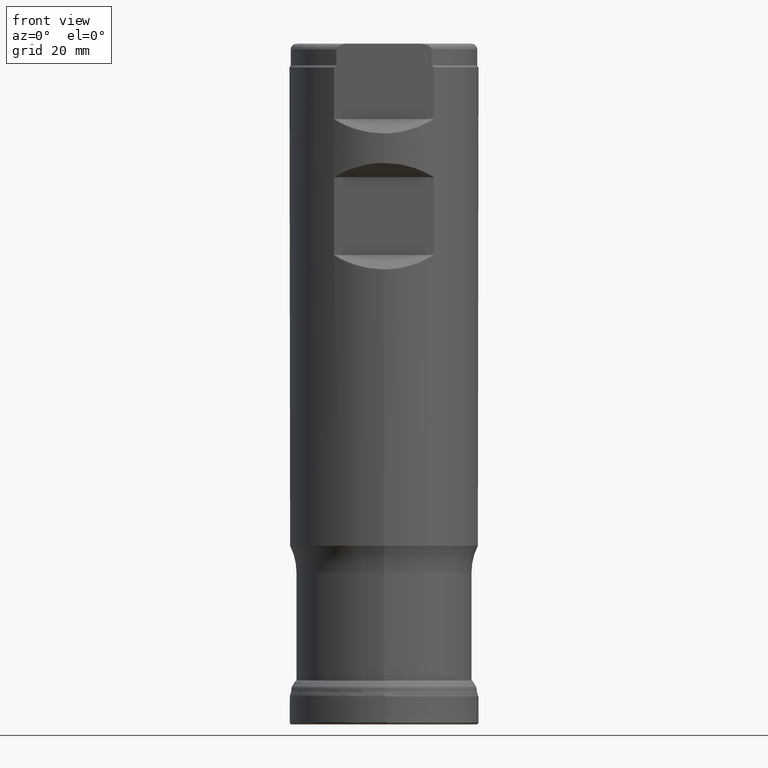
[diagram: clean part render]
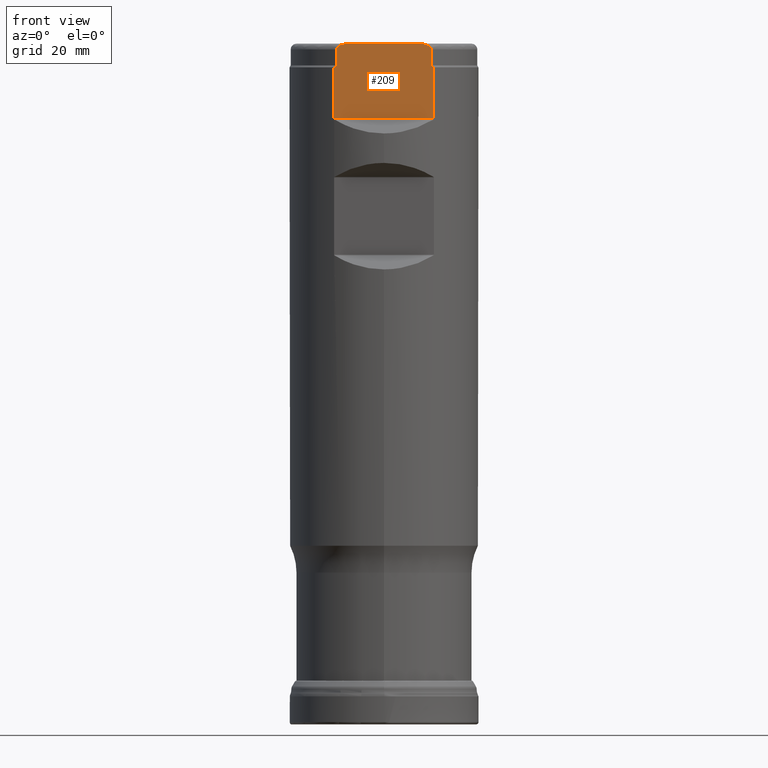
[diagram: same view with one face highlighted and labeled with its STEP entity id]
A machine part, front view. The second image highlights one B-rep face of the part: STEP entity #209.
In plain terms, the highlighted planar face has unit normal (0, -1, 0).
Its self-contained STEP definition (entity closure, byte-faithful):
#164=PLANE('',#857);
#179=FACE_OUTER_BOUND('',#409,.T.);
#209=ADVANCED_FACE('',(#179),#164,.T.);
#409=EDGE_LOOP('',(#562,#563,#564,#565,#566,#567,#568,#569,#570,#571));
#461=LINE('',#1357,#480);
#462=LINE('',#1361,#481);
#463=LINE('',#1394,#482);
#464=LINE('',#1395,#483);
#465=LINE('',#1402,#484);
#466=LINE('',#1470,#485);
#480=VECTOR('',#896,1.);
#481=VECTOR('',#899,1.);
#482=VECTOR('',#910,1.);
#483=VECTOR('',#911,1.);
#484=VECTOR('',#918,1.);
#485=VECTOR('',#987,1.);
#562=ORIENTED_EDGE('',*,*,#737,.T.);
#563=ORIENTED_EDGE('',*,*,#708,.F.);
#564=ORIENTED_EDGE('',*,*,#713,.F.);
#565=ORIENTED_EDGE('',*,*,#715,.F.);
#566=ORIENTED_EDGE('',*,*,#721,.F.);
#567=ORIENTED_EDGE('',*,*,#719,.F.);
#568=ORIENTED_EDGE('',*,*,#720,.F.);
#569=ORIENTED_EDGE('',*,*,#716,.F.);
#570=ORIENTED_EDGE('',*,*,#711,.F.);
#571=ORIENTED_EDGE('',*,*,#706,.F.);
#645=VERTEX_POINT('',#1355);
#647=VERTEX_POINT('',#1358);
#648=VERTEX_POINT('',#1360);
#649=VERTEX_POINT('',#1362);
#651=VERTEX_POINT('',#1383);
#652=VERTEX_POINT('',#1385);
#653=VERTEX_POINT('',#1392);
#654=VERTEX_POINT('',#1393);
#656=VERTEX_POINT('',#1400);
#657=VERTEX_POINT('',#1401);
#706=EDGE_CURVE('',#645,#647,#461,.T.);
#708=EDGE_CURVE('',#648,#649,#462,.T.);
#711=EDGE_CURVE('',#647,#651,#791,.T.);
#713=EDGE_CURVE('',#652,#648,#792,.T.);
#715=EDGE_CURVE('',#654,#652,#463,.T.);
#716=EDGE_CURVE('',#651,#653,#464,.T.);
#719=EDGE_CURVE('',#657,#656,#465,.T.);
#720=EDGE_CURVE('',#653,#657,#793,.T.);
#721=EDGE_CURVE('',#656,#654,#794,.T.);
#737=EDGE_CURVE('',#645,#649,#466,.T.);
#791=B_SPLINE_CURVE_WITH_KNOTS('',3,(#1379,#1380,#1381,#1382),
 .UNSPECIFIED.,.F.,.F.,(4,4),(0.,1.),.UNSPECIFIED.);
#792=B_SPLINE_CURVE_WITH_KNOTS('',3,(#1386,#1387,#1388,#1389),
 .UNSPECIFIED.,.F.,.F.,(4,4),(0.,1.),.UNSPECIFIED.);
#793=B_SPLINE_CURVE_WITH_KNOTS('',3,(#1404,#1405,#1406,#1407,#1408,#1409,
#1410,#1411),.UNSPECIFIED.,.F.,.F.,(4,2,2,4),(0.,0.25,0.500000000000002,
1.),.UNSPECIFIED.);
#794=B_SPLINE_CURVE_WITH_KNOTS('',3,(#1412,#1413,#1414,#1415,#1416,#1417,
#1418,#1419),.UNSPECIFIED.,.F.,.F.,(4,2,2,4),(0.,0.499999999999998,0.749999999999999,
1.),.UNSPECIFIED.);
#857=AXIS2_PLACEMENT_3D('',#1471,#988,#989);
#896=DIRECTION('',(0.,1.17145536458252E-15,1.));
#899=DIRECTION('',(0.,-1.17145536458252E-15,-1.));
#910=DIRECTION('',(0.,-1.17145536458252E-15,-1.));
#911=DIRECTION('',(0.,1.17145536458252E-15,1.));
#918=DIRECTION('',(1.,-1.37230767120917E-30,-1.17145536458252E-15));
#987=DIRECTION('',(1.,-1.37230767120917E-30,-1.17145536458252E-15));
#988=DIRECTION('',(0.,-1.,1.17145536458252E-15));
#989=DIRECTION('',(1.17267306976032E-15,1.17093834628434E-15,1.));
#1355=CARTESIAN_POINT('',(-8.37291264972948,-13.4873999999999,101.724264068712));
#1357=CARTESIAN_POINT('',(-8.37291264972948,-13.4874,1.57998870842703E-14));
#1358=CARTESIAN_POINT('',(-8.37291264972949,-13.4873999999999,110.3));
#1360=CARTESIAN_POINT('',(8.37291264972948,-13.4873999999999,110.3));
#1361=CARTESIAN_POINT('',(8.37291264972948,-13.4874,1.57998870842703E-14));
#1362=CARTESIAN_POINT('',(8.37291264972948,-13.4873999999999,101.724264068712));
#1379=CARTESIAN_POINT('',(-8.37291264972948,-13.4873999999999,110.3));
#1380=CARTESIAN_POINT('',(-8.24537216173962,-13.4873999999999,110.416512233654));
#1381=CARTESIAN_POINT('',(-8.11683755434123,-13.4873999999999,110.532012782716));
#1382=CARTESIAN_POINT('',(-7.98721893026602,-13.4873999999999,110.646410161514));
#1383=CARTESIAN_POINT('',(-7.98721893026603,-13.4873999999999,110.646410161514));
#1385=CARTESIAN_POINT('',(7.98721893026603,-13.4873999999999,110.646410161514));
#1386=CARTESIAN_POINT('',(7.98721893026603,-13.4873999999999,110.646410161514));
#1387=CARTESIAN_POINT('',(8.11685003072468,-13.4873999999999,110.532001771447));
#1388=CARTESIAN_POINT('',(8.24538408682383,-13.4873999999999,110.416501339716));
#1389=CARTESIAN_POINT('',(8.37291264972948,-13.4873999999999,110.3));
#1392=CARTESIAN_POINT('',(-7.9872189302887,-13.4873999999999,113.299999999989));
#1393=CARTESIAN_POINT('',(7.98721893026603,-13.4873999999999,113.3));
#1394=CARTESIAN_POINT('',(7.98721893026603,-13.4874,1.57998870842703E-14));
#1395=CARTESIAN_POINT('',(-7.98721893026603,-13.4874,1.57998870842703E-14));
#1400=CARTESIAN_POINT('',(5.78322282468844,-13.4873999999999,114.3));
#1401=CARTESIAN_POINT('',(-5.78322282468865,-13.4873999999999,114.3));
#1402=CARTESIAN_POINT('',(-17.5,-13.4873999999999,114.3));
#1404=CARTESIAN_POINT('',(-7.98721893026688,-13.4873999999999,113.299999999988));
#1405=CARTESIAN_POINT('',(-7.98721893027206,-13.4873999999999,113.520202770021));
#1406=CARTESIAN_POINT('',(-7.83736774434978,-13.4873999999999,113.715154682752));
#1407=CARTESIAN_POINT('',(-7.48623082979294,-13.4873999999999,113.980139720299));
#1408=CARTESIAN_POINT('',(-7.28172032421559,-13.4873999999999,114.067554950671));
#1409=CARTESIAN_POINT('',(-6.65729293981297,-13.4873999999999,114.2609297127));
#1410=CARTESIAN_POINT('',(-6.21637245039726,-13.4873999999999,114.3));
#1411=CARTESIAN_POINT('',(-5.78322282468865,-13.4873999999999,114.3));
#1412=CARTESIAN_POINT('',(5.78322282468844,-13.4873999999999,114.3));
#1413=CARTESIAN_POINT('',(6.21394869343175,-13.4873999999999,114.3));
#1414=CARTESIAN_POINT('',(6.65580566004196,-13.4873999999999,114.261664403719));
#1415=CARTESIAN_POINT('',(7.28486381477455,-13.4873999999999,114.06644362587));
#1416=CARTESIAN_POINT('',(7.48748729423047,-13.4873999999999,113.979507582041));
#1417=CARTESIAN_POINT('',(7.83842269980534,-13.4873999999999,113.714040424023));
#1418=CARTESIAN_POINT('',(7.98721893026603,-13.4873999999999,113.522383261353));
#1419=CARTESIAN_POINT('',(7.98721893026603,-13.4873999999999,113.3));
#1470=CARTESIAN_POINT('',(-17.5,-13.4873999999999,101.724264068712));
#1471=CARTESIAN_POINT('',(-17.5,-13.4873999999999,114.3));